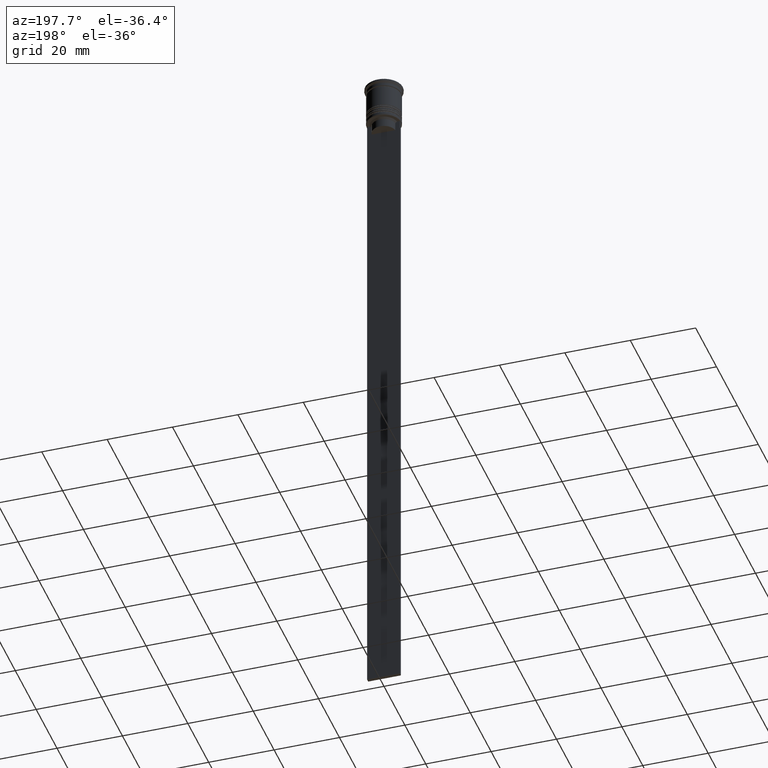
[diagram: clean part render]
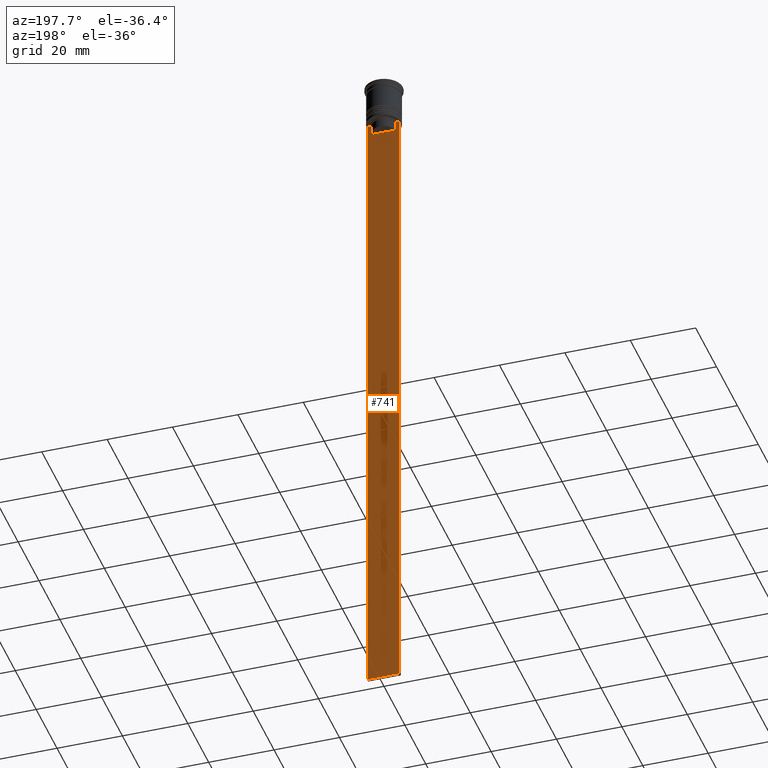
[diagram: same view with one face highlighted and labeled with its STEP entity id]
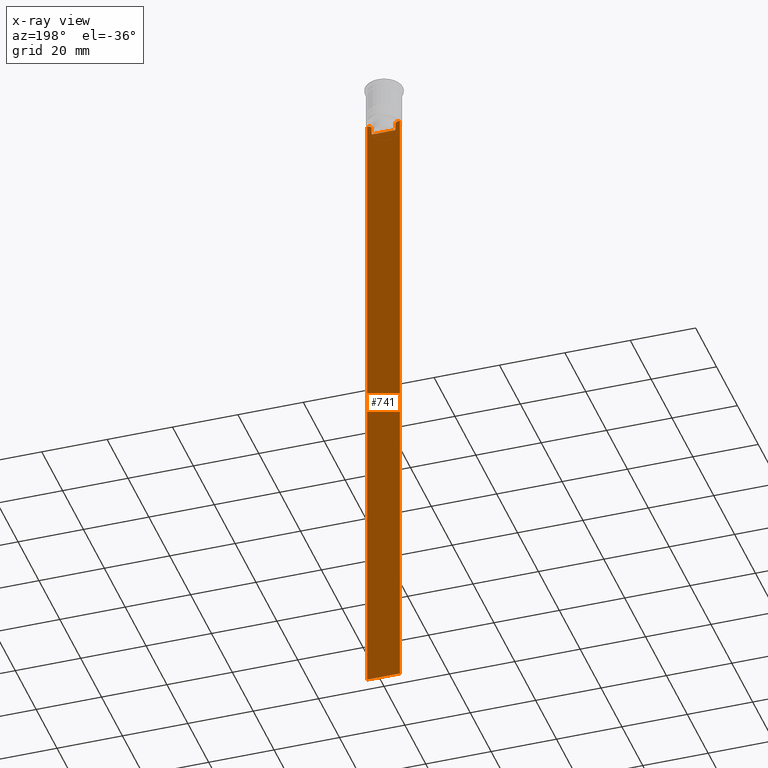
[diagram: x-ray of the same camera — body ghosted, the highlighted face saturated]
A machine part, auxiliary view. The second image highlights one B-rep face of the part: STEP entity #741.
The next image is the same camera in x-ray: the body ghosted, the highlighted face saturated — about 0% of this face is hidden behind the body in this view.
In plain terms, the highlighted planar face has unit normal (0, -1, -0).
Its self-contained STEP definition (entity closure, byte-faithful):
#23 = CARTESIAN_POINT ( 'NONE',  ( 4.119769411022908834, 0.4999999999999991673, -12.50000000000000000 ) ) ;
#35 = ORIENTED_EDGE ( 'NONE', *, *, #2210, .T. ) ;
#40 = VECTOR ( 'NONE', #367, 1000.000000000000000 ) ;
#45 = FACE_OUTER_BOUND ( 'NONE', #1891, .T. ) ;
#52 = CARTESIAN_POINT ( 'NONE',  ( 5.000000000000000000, 0.4999999999999991673, -12.50000000000000000 ) ) ;
#57 = DIRECTION ( 'NONE',  ( 1.000000000000000000, 0.000000000000000000, 0.000000000000000000 ) ) ;
#59 = VERTEX_POINT ( 'NONE', #52 ) ;
#82 = EDGE_CURVE ( 'NONE', #589, #194, #898, .T. ) ;
#92 = VECTOR ( 'NONE', #1728, 1000.000000000000000 ) ;
#96 = LINE ( 'NONE', #637, #92 ) ;
#98 = CARTESIAN_POINT ( 'NONE',  ( -4.999999999999999112, 0.4999999999999991673, -2.450124378879110054 ) ) ;
#121 = DIRECTION ( 'NONE',  ( 1.000000000000000000, 0.000000000000000000, 0.000000000000000000 ) ) ;
#194 = VERTEX_POINT ( 'NONE', #2092 ) ;
#209 = ORIENTED_EDGE ( 'NONE', *, *, #1063, .T. ) ;
#219 = EDGE_CURVE ( 'NONE', #194, #59, #833, .T. ) ;
#238 = CARTESIAN_POINT ( 'NONE',  ( -4.999999999999999112, 0.4999999999999993339, -12.50000000000000000 ) ) ;
#259 = VERTEX_POINT ( 'NONE', #673 ) ;
#278 = VERTEX_POINT ( 'NONE', #875 ) ;
#283 = CARTESIAN_POINT ( 'NONE',  ( 3.615591237958188042, 0.4999999999999991673, -13.00000000000000178 ) ) ;
#307 = VECTOR ( 'NONE', #121, 1000.000000000000000 ) ;
#367 = DIRECTION ( 'NONE',  ( 0.000000000000000000, 0.000000000000000000, -1.000000000000000000 ) ) ;
#382 = CARTESIAN_POINT ( 'NONE',  ( 3.951794168112527927, 0.4999999999999991673, -12.66675163073525923 ) ) ;
#446 = VERTEX_POINT ( 'NONE', #238 ) ;
#455 = CARTESIAN_POINT ( 'NONE',  ( 5.000000000000000000, 0.4999999999999991673, -212.5000000000000284 ) ) ;
#457 = CARTESIAN_POINT ( 'NONE',  ( -3.951794205566887985, 0.4999999999999991673, -12.66675159355373737 ) ) ;
#471 = EDGE_CURVE ( 'NONE', #541, #259, #96, .T. ) ;
#475 = ORIENTED_EDGE ( 'NONE', *, *, #1058, .T. ) ;
#515 = ORIENTED_EDGE ( 'NONE', *, *, #1897, .F. ) ;
#541 = VERTEX_POINT ( 'NONE', #2293 ) ;
#548 = DIRECTION ( 'NONE',  ( -1.000000000000000000, 0.000000000000000000, 0.000000000000000000 ) ) ;
#552 = VECTOR ( 'NONE', #897, 1000.000000000000000 ) ;
#553 = VERTEX_POINT ( 'NONE', #1215 ) ;
#589 = VERTEX_POINT ( 'NONE', #283 ) ;
#604 = DIRECTION ( 'NONE',  ( 0.000000000000000000, 0.000000000000000000, -1.000000000000000000 ) ) ;
#637 = CARTESIAN_POINT ( 'NONE',  ( 0.000000000000000000, 0.4999999999999991673, -15.50000000000000000 ) ) ;
#653 = CARTESIAN_POINT ( 'NONE',  ( 5.000000000000000000, 0.4999999999999991673, -12.50000000000000000 ) ) ;
#673 = CARTESIAN_POINT ( 'NONE',  ( 3.615591237958188486, 0.4999999999999991673, -15.50000000000000000 ) ) ;
#709 = EDGE_CURVE ( 'NONE', #59, #1493, #1073, .T. ) ;
#734 = B_SPLINE_CURVE_WITH_KNOTS ( 'NONE', 3,
 ( #2073, #457, #1852, #779 ),
 .UNSPECIFIED., .F., .F.,
 ( 4, 4 ),
 ( 0.007067514914986626831, 0.007777582239375527978 ),
 .UNSPECIFIED. ) ;
#741 = ADVANCED_FACE ( 'NONE', ( #45 ), #1474, .F. ) ;
#779 = CARTESIAN_POINT ( 'NONE',  ( -3.615591237958188042, 0.4999999999999991673, -13.00000000000000178 ) ) ;
#786 = CARTESIAN_POINT ( 'NONE',  ( 3.615591237958188042, 0.4999999999999991673, 0.000000000000000000 ) ) ;
#814 = LINE ( 'NONE', #1528, #1767 ) ;
#828 = ORIENTED_EDGE ( 'NONE', *, *, #1760, .T. ) ;
#833 = LINE ( 'NONE', #653, #307 ) ;
#875 = CARTESIAN_POINT ( 'NONE',  ( -4.119769411022908834, 0.4999999999999991673, -12.50000000000000000 ) ) ;
#897 = DIRECTION ( 'NONE',  ( 0.000000000000000000, 0.000000000000000000, -1.000000000000000000 ) ) ;
#898 = B_SPLINE_CURVE_WITH_KNOTS ( 'NONE', 3,
 ( #1278, #1997, #382, #23 ),
 .UNSPECIFIED., .F., .F.,
 ( 4, 4 ),
 ( 0.01745179617248911533, 0.01816207215777259493 ),
 .UNSPECIFIED. ) ;
#923 = DIRECTION ( 'NONE',  ( 0.000000000000000000, 0.000000000000000000, -1.000000000000000000 ) ) ;
#1003 = LINE ( 'NONE', #98, #1438 ) ;
#1058 = EDGE_CURVE ( 'NONE', #446, #278, #814, .T. ) ;
#1063 = EDGE_CURVE ( 'NONE', #278, #553, #734, .T. ) ;
#1073 = LINE ( 'NONE', #1981, #40 ) ;
#1075 = CARTESIAN_POINT ( 'NONE',  ( -3.615591237958188042, 0.4999999999999991673, 0.000000000000000000 ) ) ;
#1144 = LINE ( 'NONE', #1075, #552 ) ;
#1215 = CARTESIAN_POINT ( 'NONE',  ( -3.615591237958188042, 0.4999999999999991673, -13.00000000000000178 ) ) ;
#1218 = VECTOR ( 'NONE', #1918, 1000.000000000000000 ) ;
#1257 = ORIENTED_EDGE ( 'NONE', *, *, #219, .T. ) ;
#1278 = CARTESIAN_POINT ( 'NONE',  ( 3.615591237958188042, 0.4999999999999991673, -13.00000000000000178 ) ) ;
#1312 = LINE ( 'NONE', #786, #1218 ) ;
#1389 = VERTEX_POINT ( 'NONE', #1827 ) ;
#1438 = VECTOR ( 'NONE', #604, 1000.000000000000000 ) ;
#1462 = CARTESIAN_POINT ( 'NONE',  ( 5.000000000000000000, 0.4999999999999991673, -2.450124378879110054 ) ) ;
#1474 = PLANE ( 'NONE',  #1551 ) ;
#1493 = VERTEX_POINT ( 'NONE', #455 ) ;
#1496 = ORIENTED_EDGE ( 'NONE', *, *, #1979, .T. ) ;
#1528 = CARTESIAN_POINT ( 'NONE',  ( 5.000000000000000000, 0.4999999999999991673, -12.50000000000000000 ) ) ;
#1551 = AXIS2_PLACEMENT_3D ( 'NONE', #1462, #2194, #923 ) ;
#1623 = CARTESIAN_POINT ( 'NONE',  ( 5.000000000000000000, 0.4999999999999991673, -212.5000000000000284 ) ) ;
#1672 = VECTOR ( 'NONE', #548, 1000.000000000000000 ) ;
#1728 = DIRECTION ( 'NONE',  ( 1.000000000000000000, 0.000000000000000000, 0.000000000000000000 ) ) ;
#1760 = EDGE_CURVE ( 'NONE', #1493, #1389, #1837, .T. ) ;
#1767 = VECTOR ( 'NONE', #57, 1000.000000000000000 ) ;
#1803 = ORIENTED_EDGE ( 'NONE', *, *, #471, .T. ) ;
#1810 = ORIENTED_EDGE ( 'NONE', *, *, #82, .T. ) ;
#1827 = CARTESIAN_POINT ( 'NONE',  ( -4.999999999999999112, 0.4999999999999991673, -212.5000000000000284 ) ) ;
#1837 = LINE ( 'NONE', #1623, #1672 ) ;
#1852 = CARTESIAN_POINT ( 'NONE',  ( -3.783746449387932920, 0.4999999999999991673, -12.83342999751715752 ) ) ;
#1891 = EDGE_LOOP ( 'NONE', ( #475, #209, #35, #1803, #1496, #1810, #1257, #2125, #828, #515 ) ) ;
#1897 = EDGE_CURVE ( 'NONE', #446, #1389, #1003, .T. ) ;
#1918 = DIRECTION ( 'NONE',  ( -0.000000000000000000, -0.000000000000000000, 1.000000000000000000 ) ) ;
#1979 = EDGE_CURVE ( 'NONE', #259, #589, #1312, .T. ) ;
#1981 = CARTESIAN_POINT ( 'NONE',  ( 5.000000000000000000, 0.4999999999999991673, -2.450124378879110054 ) ) ;
#1997 = CARTESIAN_POINT ( 'NONE',  ( 3.783746406711540722, 0.4999999999999991673, -12.83343003979123509 ) ) ;
#2073 = CARTESIAN_POINT ( 'NONE',  ( -4.119769411022908834, 0.4999999999999991673, -12.50000000000000000 ) ) ;
#2092 = CARTESIAN_POINT ( 'NONE',  ( 4.119769411022908834, 0.4999999999999991673, -12.50000000000000000 ) ) ;
#2125 = ORIENTED_EDGE ( 'NONE', *, *, #709, .T. ) ;
#2194 = DIRECTION ( 'NONE',  ( 0.000000000000000000, -1.000000000000000000, -0.000000000000000000 ) ) ;
#2210 = EDGE_CURVE ( 'NONE', #553, #541, #1144, .T. ) ;
#2293 = CARTESIAN_POINT ( 'NONE',  ( -3.615591237958188486, 0.4999999999999991673, -15.50000000000000000 ) ) ;